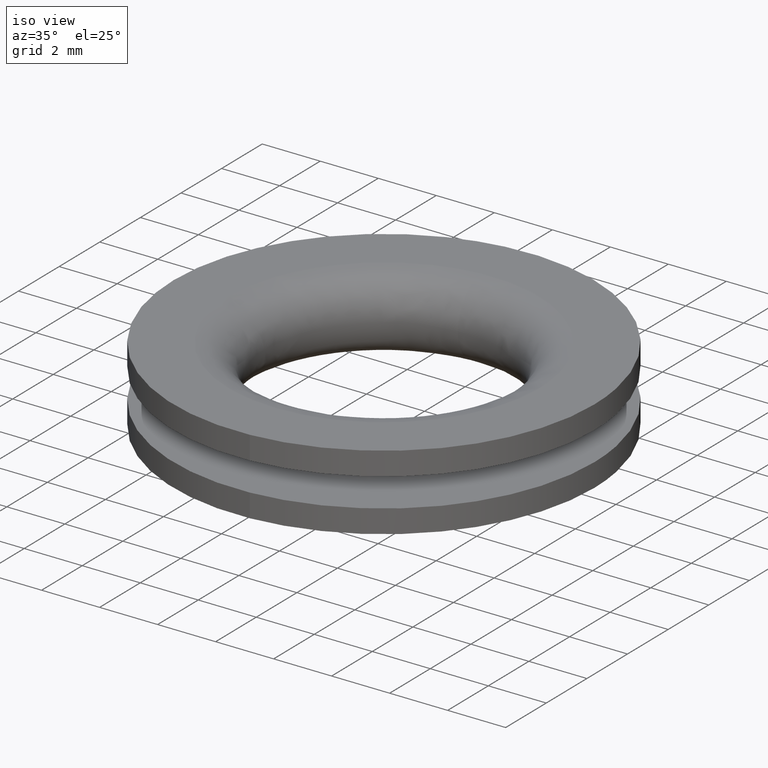
[diagram: clean part render]
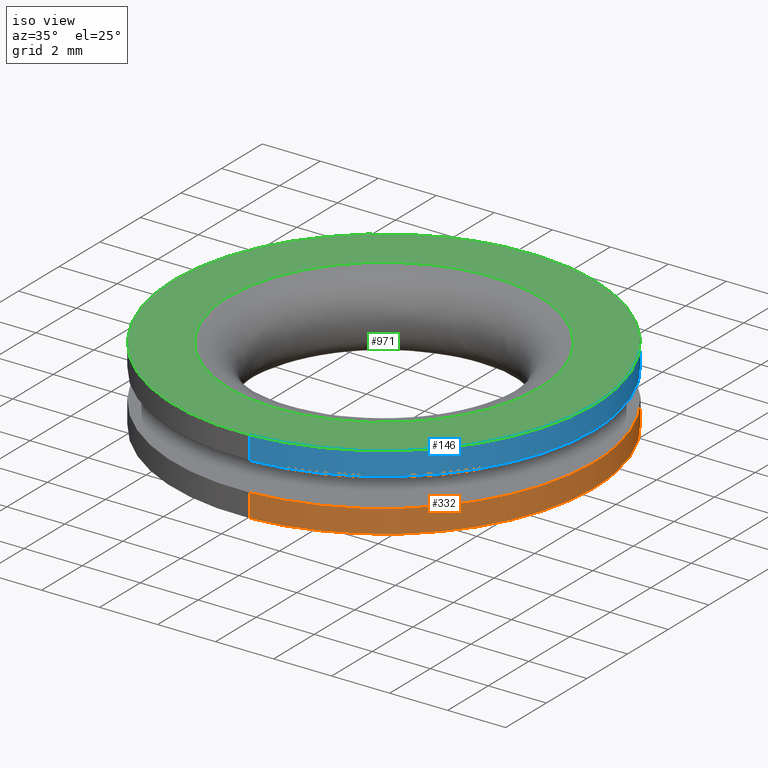
[diagram: same view with three faces highlighted in distinct colors, each labeled with its STEP entity id]
A machine part, iso view with three faces highlighted in distinct colors.
Their STEP definitions:

[orange] entity #332 — the highlighted face is a freeform B-spline surface patch.
#230=CARTESIAN_POINT('',(-0.855748083227264,7.199318073127055,0.819999999999990));
#231=CARTESIAN_POINT('',(-0.649706693010609,7.223809215614775,0.819999999999990));
#232=CARTESIAN_POINT('',(-0.442601850579174,7.236476290423735,0.819999999999990));
#233=CARTESIAN_POINT('',(6.793874439844561,7.679078141002909,0.819999999999990));
#234=CARTESIAN_POINT('',(7.236476290423735,0.442601850579174,0.819999999999990));
#235=CARTESIAN_POINT('',(7.679078141002909,-6.793874439844561,0.819999999999990));
#236=CARTESIAN_POINT('',(0.442601850579174,-7.236476290423735,0.819999999999990));
#237=CARTESIAN_POINT('',(-0.855748083227264,7.199318073127055,-0.020500000000000));
#238=CARTESIAN_POINT('',(-0.649706693010609,7.223809215614775,-0.020500000000000));
#239=CARTESIAN_POINT('',(-0.442601850579174,7.236476290423735,-0.020500000000000));
#240=CARTESIAN_POINT('',(6.793874439844561,7.679078141002909,-0.020500000000000));
#241=CARTESIAN_POINT('',(7.236476290423735,0.442601850579174,-0.020500000000000));
#242=CARTESIAN_POINT('',(7.679078141002909,-6.793874439844561,-0.020500000000000));
#243=CARTESIAN_POINT('',(0.442601850579174,-7.236476290423735,-0.020500000000000));
#251=(BOUNDED_SURFACE()B_SPLINE_SURFACE(2,1,((#230,#237),(#231,#238),(#232,#239),(#233,#240),(#234,#241),(#235,#242),(#236,#243)),.UNSPECIFIED.,.F.,.F.,.U.)B_SPLINE_SURFACE_WITH_KNOTS((3,2,2,3),(2,2),(0.0,0.480487666078621,12.492679318044130,24.504870970009630),(0.0,1.0),.UNSPECIFIED.)GEOMETRIC_REPRESENTATION_ITEM()RATIONAL_B_SPLINE_SURFACE(((0.977505800795127,0.977505800795127),(0.988284271247462,0.988284271247462),(1.0,1.0),(0.707106781186548,0.707106781186548),(1.0,1.0),(0.707106781186548,0.707106781186548),(1.0,1.0)))REPRESENTATION_ITEM('')SURFACE());
#252=CARTESIAN_POINT('',(-0.855743500075938,7.199318617901104,0.799999999999926));
#253=VERTEX_POINT('',#252);
#254=CARTESIAN_POINT('',(7.249999000000000,0.0,0.799999999999990));
#255=VERTEX_POINT('',#254);
#256=CARTESIAN_POINT('',(-0.855743500075938,7.199318617901104,0.799999999999926));
#257=CARTESIAN_POINT('',(-0.429372492450539,7.249999000000001,0.799999999999990));
#258=CARTESIAN_POINT('',(0.0,7.249999000000000,0.799999999999990));
#259=CARTESIAN_POINT('',(7.249998999999999,7.249998999999999,0.799999999999990));
#260=CARTESIAN_POINT('',(7.249999000000000,0.0,0.799999999999990));
#268=(BOUNDED_CURVE()B_SPLINE_CURVE(2,(#256,#257,#258,#259,#260),.UNSPECIFIED.,.F.,.U.)B_SPLINE_CURVE_WITH_KNOTS((3,2,3),(0.229562581104653,0.250000000000000,0.500000000000000),.UNSPECIFIED.)CURVE()GEOMETRIC_REPRESENTATION_ITEM()RATIONAL_B_SPLINE_CURVE((0.956026965066855,0.976056074382012,1.0,0.707106781186547,1.0))REPRESENTATION_ITEM(''));
#269=EDGE_CURVE('',#253,#255,#268,.T.);
#270=ORIENTED_EDGE('',*,*,#269,.T.);
#271=CARTESIAN_POINT('',(0.442599261778933,-7.236476448760612,0.799999999999948));
#272=VERTEX_POINT('',#271);
#273=CARTESIAN_POINT('',(7.249999000000000,0.0,0.799999999999990));
#274=CARTESIAN_POINT('',(7.249998999999998,-6.820120488770804,0.799999999999990));
#275=CARTESIAN_POINT('',(0.442599261778933,-7.236476448760612,0.799999999999948));
#283=(BOUNDED_CURVE()B_SPLINE_CURVE(2,(#273,#274,#275),.UNSPECIFIED.,.F.,.U.)B_SPLINE_CURVE_WITH_KNOTS((3,3),(0.500000000000000,0.739333023969413),.UNSPECIFIED.)CURVE()GEOMETRIC_REPRESENTATION_ITEM()RATIONAL_B_SPLINE_CURVE((1.0,0.719603920964966,0.976072173966902))REPRESENTATION_ITEM(''));
#284=EDGE_CURVE('',#255,#272,#283,.T.);
#285=ORIENTED_EDGE('',*,*,#284,.T.);
#286=CARTESIAN_POINT('',(0.442599292946064,-7.236476446854370,6.938894E-018));
#287=VERTEX_POINT('',#286);
#288=CARTESIAN_POINT('',(0.442599261778933,-7.236476448760612,0.799999999999948));
#289=CARTESIAN_POINT('',(0.442599292946064,-7.236476446854370,6.938894E-018));
#290=QUASI_UNIFORM_CURVE('',1,(#288,#289),.UNSPECIFIED.,.F.,.U.);
#291=EDGE_CURVE('',#272,#287,#290,.T.);
#292=ORIENTED_EDGE('',*,*,#291,.T.);
#293=CARTESIAN_POINT('',(7.249999000000000,0.0,0.0));
#294=VERTEX_POINT('',#293);
#295=CARTESIAN_POINT('',(7.249999000000000,0.0,0.0));
#296=CARTESIAN_POINT('',(7.249998999999999,-6.820120459342002,0.0));
#297=CARTESIAN_POINT('',(0.442599292946064,-7.236476446854370,6.938894E-018));
#305=(BOUNDED_CURVE()B_SPLINE_CURVE(2,(#295,#296,#297),.UNSPECIFIED.,.F.,.U.)B_SPLINE_CURVE_WITH_KNOTS((3,3),(0.500000000000000,0.739333023226263),.UNSPECIFIED.)CURVE()GEOMETRIC_REPRESENTATION_ITEM()RATIONAL_B_SPLINE_CURVE((1.0,0.719603921835620,0.976072172374189))REPRESENTATION_ITEM(''));
#306=EDGE_CURVE('',#294,#287,#305,.T.);
#307=ORIENTED_EDGE('',*,*,#306,.F.);
#308=CARTESIAN_POINT('',(-0.855743555278183,7.199318611339550,-4.081678E-017));
#309=VERTEX_POINT('',#308);
#310=CARTESIAN_POINT('',(-0.855743555278183,7.199318611339550,-4.081678E-017));
#311=CARTESIAN_POINT('',(-0.429372520343452,7.249999000000001,0.0));
#312=CARTESIAN_POINT('',(0.0,7.249999000000000,0.0));
#313=CARTESIAN_POINT('',(7.249998999999999,7.249998999999999,0.0));
#314=CARTESIAN_POINT('',(7.249999000000000,0.0,0.0));
#322=(BOUNDED_CURVE()B_SPLINE_CURVE(2,(#310,#311,#312,#313,#314),.UNSPECIFIED.,.F.,.U.)B_SPLINE_CURVE_WITH_KNOTS((3,2,3),(0.229562579808786,0.250000000000000,0.500000000000000),.UNSPECIFIED.)CURVE()GEOMETRIC_REPRESENTATION_ITEM()RATIONAL_B_SPLINE_CURVE((0.956026962526900,0.976056072863809,1.0,0.707106781186547,1.0))REPRESENTATION_ITEM(''));
#323=EDGE_CURVE('',#309,#294,#322,.T.);
#324=ORIENTED_EDGE('',*,*,#323,.F.);
#325=CARTESIAN_POINT('',(-0.855743500075938,7.199318617901104,0.799999999999926));
#326=CARTESIAN_POINT('',(-0.855743555278183,7.199318611339550,-4.081678E-017));
#327=QUASI_UNIFORM_CURVE('',1,(#325,#326),.UNSPECIFIED.,.F.,.U.);
#328=EDGE_CURVE('',#253,#309,#327,.T.);
#329=ORIENTED_EDGE('',*,*,#328,.F.);
#330=EDGE_LOOP('',(#270,#285,#292,#307,#324,#329));
#331=FACE_OUTER_BOUND('',#330,.T.);
#332=ADVANCED_FACE('',(#331),#251,.T.);

[blue] entity #146 — the highlighted face is a freeform B-spline surface patch.
#44=CARTESIAN_POINT('',(-0.855748083227264,7.199318073127055,2.619998975000001));
#45=CARTESIAN_POINT('',(-0.649706693010609,7.223809215614775,2.619998975000001));
#46=CARTESIAN_POINT('',(-0.442601850579174,7.236476290423735,2.619998975000001));
#47=CARTESIAN_POINT('',(6.793874439844561,7.679078141002909,2.619998975000000));
#48=CARTESIAN_POINT('',(7.236476290423735,0.442601850579174,2.619998975000001));
#49=CARTESIAN_POINT('',(7.679078141002909,-6.793874439844561,2.619998975000000));
#50=CARTESIAN_POINT('',(0.442601850579174,-7.236476290423735,2.619998975000001));
#51=CARTESIAN_POINT('',(-0.855748083227264,7.199318073127055,1.779500025625000));
#52=CARTESIAN_POINT('',(-0.649706693010609,7.223809215614775,1.779500025625000));
#53=CARTESIAN_POINT('',(-0.442601850579174,7.236476290423735,1.779500025625000));
#54=CARTESIAN_POINT('',(6.793874439844561,7.679078141002909,1.779500025625001));
#55=CARTESIAN_POINT('',(7.236476290423735,0.442601850579174,1.779500025625000));
#56=CARTESIAN_POINT('',(7.679078141002909,-6.793874439844561,1.779500025625001));
#57=CARTESIAN_POINT('',(0.442601850579174,-7.236476290423735,1.779500025625000));
#65=(BOUNDED_SURFACE()B_SPLINE_SURFACE(2,1,((#44,#51),(#45,#52),(#46,#53),(#47,#54),(#48,#55),(#49,#56),(#50,#57)),.UNSPECIFIED.,.F.,.F.,.U.)B_SPLINE_SURFACE_WITH_KNOTS((3,2,2,3),(2,2),(0.0,0.480487666078621,12.492679318044130,24.504870970009630),(0.0,1.0),.UNSPECIFIED.)GEOMETRIC_REPRESENTATION_ITEM()RATIONAL_B_SPLINE_SURFACE(((0.977505800795127,0.977505800795127),(0.988284271247462,0.988284271247462),(1.0,1.0),(0.707106781186548,0.707106781186548),(1.0,1.0),(0.707106781186548,0.707106781186548),(1.0,1.0)))REPRESENTATION_ITEM('')SURFACE());
#66=CARTESIAN_POINT('',(-0.855743498730361,7.199318618061044,1.800000000000064));
#67=VERTEX_POINT('',#66);
#68=CARTESIAN_POINT('',(7.249999000000000,0.0,1.800000000000000));
#69=VERTEX_POINT('',#68);
#70=CARTESIAN_POINT('',(-0.855743498730361,7.199318618061044,1.800000000000064));
#71=CARTESIAN_POINT('',(-0.429372491770638,7.249998999999999,1.800000000000000));
#72=CARTESIAN_POINT('',(0.0,7.249999000000000,1.800000000000000));
#73=CARTESIAN_POINT('',(7.249998999999999,7.249998999999999,1.800000000000001));
#74=CARTESIAN_POINT('',(7.249999000000000,0.0,1.800000000000000));
#82=(BOUNDED_CURVE()B_SPLINE_CURVE(2,(#70,#71,#72,#73,#74),.UNSPECIFIED.,.F.,.U.)B_SPLINE_CURVE_WITH_KNOTS((3,2,3),(0.229562581136241,0.250000000000000,0.500000000000000),.UNSPECIFIED.)CURVE()GEOMETRIC_REPRESENTATION_ITEM()RATIONAL_B_SPLINE_CURVE((0.956026965128767,0.976056074419019,1.0,0.707106781186547,1.0))REPRESENTATION_ITEM(''));
#83=EDGE_CURVE('',#67,#69,#82,.T.);
#84=ORIENTED_EDGE('',*,*,#83,.F.);
#85=CARTESIAN_POINT('',(-0.855743555278183,7.199318611339550,2.599999000000000));
#86=VERTEX_POINT('',#85);
#87=CARTESIAN_POINT('',(-0.855743555278183,7.199318611339550,2.599999000000000));
#88=CARTESIAN_POINT('',(-0.855743498730361,7.199318618061044,1.800000000000064));
#89=QUASI_UNIFORM_CURVE('',1,(#87,#88),.UNSPECIFIED.,.F.,.U.);
#90=EDGE_CURVE('',#86,#67,#89,.T.);
#91=ORIENTED_EDGE('',*,*,#90,.F.);
#92=CARTESIAN_POINT('',(7.249999000000000,0.0,2.599999000000000));
#93=VERTEX_POINT('',#92);
#94=CARTESIAN_POINT('',(-0.855743555278183,7.199318611339550,2.599999000000000));
#95=CARTESIAN_POINT('',(-0.429372520343452,7.249999000000001,2.599999000000001));
#96=CARTESIAN_POINT('',(0.0,7.249999000000000,2.599999000000000));
#97=CARTESIAN_POINT('',(7.249998999999999,7.249998999999999,2.599999000000000));
#98=CARTESIAN_POINT('',(7.249999000000000,0.0,2.599999000000000));
#106=(BOUNDED_CURVE()B_SPLINE_CURVE(2,(#94,#95,#96,#97,#98),.UNSPECIFIED.,.F.,.U.)B_SPLINE_CURVE_WITH_KNOTS((3,2,3),(0.229562579808786,0.250000000000000,0.500000000000000),.UNSPECIFIED.)CURVE()GEOMETRIC_REPRESENTATION_ITEM()RATIONAL_B_SPLINE_CURVE((0.956026962526900,0.976056072863809,1.0,0.707106781186547,1.0))REPRESENTATION_ITEM(''));
#107=EDGE_CURVE('',#86,#93,#106,.T.);
#108=ORIENTED_EDGE('',*,*,#107,.T.);
#109=CARTESIAN_POINT('',(0.442599292946064,-7.236476446854370,2.599999000000000));
#110=VERTEX_POINT('',#109);
#111=CARTESIAN_POINT('',(7.249999000000000,0.0,2.599999000000000));
#112=CARTESIAN_POINT('',(7.249998999999999,-6.820120459342002,2.599999000000001));
#113=CARTESIAN_POINT('',(0.442599292946064,-7.236476446854370,2.599998999999999));
#121=(BOUNDED_CURVE()B_SPLINE_CURVE(2,(#111,#112,#113),.UNSPECIFIED.,.F.,.U.)B_SPLINE_CURVE_WITH_KNOTS((3,3),(0.500000000000000,0.739333023226263),.UNSPECIFIED.)CURVE()GEOMETRIC_REPRESENTATION_ITEM()RATIONAL_B_SPLINE_CURVE((1.0,0.719603921835620,0.976072172374189))REPRESENTATION_ITEM(''));
#122=EDGE_CURVE('',#93,#110,#121,.T.);
#123=ORIENTED_EDGE('',*,*,#122,.T.);
#124=CARTESIAN_POINT('',(0.442599261019222,-7.236476448807077,1.800000000000042));
#125=VERTEX_POINT('',#124);
#126=CARTESIAN_POINT('',(0.442599292946064,-7.236476446854370,2.599999000000000));
#127=CARTESIAN_POINT('',(0.442599261019222,-7.236476448807077,1.800000000000042));
#128=QUASI_UNIFORM_CURVE('',1,(#126,#127),.UNSPECIFIED.,.F.,.U.);
#129=EDGE_CURVE('',#110,#125,#128,.T.);
#130=ORIENTED_EDGE('',*,*,#129,.T.);
#131=CARTESIAN_POINT('',(7.249999000000000,0.0,1.800000000000000));
#132=CARTESIAN_POINT('',(7.249998999999999,-6.820120489488138,1.799999999999999));
#133=CARTESIAN_POINT('',(0.442599261019222,-7.236476448807077,1.800000000000042));
#141=(BOUNDED_CURVE()B_SPLINE_CURVE(2,(#131,#132,#133),.UNSPECIFIED.,.F.,.U.)B_SPLINE_CURVE_WITH_KNOTS((3,3),(0.500000000000000,0.739333023987528),.UNSPECIFIED.)CURVE()GEOMETRIC_REPRESENTATION_ITEM()RATIONAL_B_SPLINE_CURVE((1.0,0.719603920943743,0.976072174005725))REPRESENTATION_ITEM(''));
#142=EDGE_CURVE('',#69,#125,#141,.T.);
#143=ORIENTED_EDGE('',*,*,#142,.F.);
#144=EDGE_LOOP('',(#84,#91,#108,#123,#130,#143));
#145=FACE_OUTER_BOUND('',#144,.T.);
#146=ADVANCED_FACE('',(#145),#65,.T.);

[green] entity #971 — the highlighted face is a freeform B-spline surface patch.
#85=CARTESIAN_POINT('',(-0.855743555278183,7.199318611339550,2.599999000000000));
#86=VERTEX_POINT('',#85);
#92=CARTESIAN_POINT('',(7.249999000000000,0.0,2.599999000000000));
#93=VERTEX_POINT('',#92);
#94=CARTESIAN_POINT('',(-0.855743555278183,7.199318611339550,2.599999000000000));
#95=CARTESIAN_POINT('',(-0.429372520343452,7.249999000000001,2.599999000000001));
#96=CARTESIAN_POINT('',(0.0,7.249999000000000,2.599999000000000));
#97=CARTESIAN_POINT('',(7.249998999999999,7.249998999999999,2.599999000000000));
#98=CARTESIAN_POINT('',(7.249999000000000,0.0,2.599999000000000));
#106=(BOUNDED_CURVE()B_SPLINE_CURVE(2,(#94,#95,#96,#97,#98),.UNSPECIFIED.,.F.,.U.)B_SPLINE_CURVE_WITH_KNOTS((3,2,3),(0.229562579808786,0.250000000000000,0.500000000000000),.UNSPECIFIED.)CURVE()GEOMETRIC_REPRESENTATION_ITEM()RATIONAL_B_SPLINE_CURVE((0.956026962526900,0.976056072863809,1.0,0.707106781186547,1.0))REPRESENTATION_ITEM(''));
#107=EDGE_CURVE('',#86,#93,#106,.T.);
#109=CARTESIAN_POINT('',(0.442599292946064,-7.236476446854370,2.599999000000000));
#110=VERTEX_POINT('',#109);
#111=CARTESIAN_POINT('',(7.249999000000000,0.0,2.599999000000000));
#112=CARTESIAN_POINT('',(7.249998999999999,-6.820120459342002,2.599999000000001));
#113=CARTESIAN_POINT('',(0.442599292946064,-7.236476446854370,2.599998999999999));
#121=(BOUNDED_CURVE()B_SPLINE_CURVE(2,(#111,#112,#113),.UNSPECIFIED.,.F.,.U.)B_SPLINE_CURVE_WITH_KNOTS((3,3),(0.500000000000000,0.739333023226263),.UNSPECIFIED.)CURVE()GEOMETRIC_REPRESENTATION_ITEM()RATIONAL_B_SPLINE_CURVE((1.0,0.719603921835620,0.976072172374189))REPRESENTATION_ITEM(''));
#122=EDGE_CURVE('',#93,#110,#121,.T.);
#196=CARTESIAN_POINT('',(-7.249999000000000,0.0,2.599999000000000));
#197=VERTEX_POINT('',#196);
#198=CARTESIAN_POINT('',(0.442599292946064,-7.236476446854370,2.599998999999999));
#199=CARTESIAN_POINT('',(0.221506220959810,-7.249999000000000,2.599999000000000));
#200=CARTESIAN_POINT('',(0.0,-7.249999000000000,2.599999000000000));
#201=CARTESIAN_POINT('',(-7.249998999999999,-7.249998999999999,2.599999000000000));
#202=CARTESIAN_POINT('',(-7.249999000000000,0.0,2.599999000000000));
#210=(BOUNDED_CURVE()B_SPLINE_CURVE(2,(#198,#199,#200,#201,#202),.UNSPECIFIED.,.F.,.U.)B_SPLINE_CURVE_WITH_KNOTS((3,2,3),(0.739333023226263,0.750000000000000,1.0),.UNSPECIFIED.)CURVE()GEOMETRIC_REPRESENTATION_ITEM()RATIONAL_B_SPLINE_CURVE((0.976072172374189,0.987502859350927,1.0,0.707106781186547,1.0))REPRESENTATION_ITEM(''));
#211=EDGE_CURVE('',#110,#197,#210,.T.);
#213=CARTESIAN_POINT('',(-7.249999000000000,0.0,2.599999000000000));
#214=CARTESIAN_POINT('',(-7.249998999999999,6.439268503403767,2.599999000000000));
#215=CARTESIAN_POINT('',(-0.855743555278183,7.199318611339550,2.599999000000000));
#223=(BOUNDED_CURVE()B_SPLINE_CURVE(2,(#213,#214,#215),.UNSPECIFIED.,.F.,.U.)B_SPLINE_CURVE_WITH_KNOTS((3,3),(0.0,0.229562579808786),.UNSPECIFIED.)CURVE()GEOMETRIC_REPRESENTATION_ITEM()RATIONAL_B_SPLINE_CURVE((1.0,0.731050708322738,0.956026962526900))REPRESENTATION_ITEM(''));
#224=EDGE_CURVE('',#197,#86,#223,.T.);
#735=CARTESIAN_POINT('',(0.067248550375671,-5.351187910571347,2.599999000000008));
#736=VERTEX_POINT('',#735);
#752=CARTESIAN_POINT('',(5.351610451245589,0.0,2.599999000000000));
#753=VERTEX_POINT('',#752);
#754=CARTESIAN_POINT('',(5.351610451245589,0.0,2.599999000000000));
#755=CARTESIAN_POINT('',(5.351610451245590,-5.284779164811236,2.599999000000000));
#756=CARTESIAN_POINT('',(0.067248550375671,-5.351187910571347,2.599999000000008));
#764=(BOUNDED_CURVE()B_SPLINE_CURVE(2,(#754,#755,#756),.UNSPECIFIED.,.F.,.U.)B_SPLINE_CURVE_WITH_KNOTS((3,3),(0.500000000000000,0.747784295921381),.UNSPECIFIED.)CURVE()GEOMETRIC_REPRESENTATION_ITEM()RATIONAL_B_SPLINE_CURVE((1.0,0.709702639984647,0.994854295643212))REPRESENTATION_ITEM(''));
#765=EDGE_CURVE('',#753,#736,#764,.T.);
#767=CARTESIAN_POINT('',(-0.373184664486969,5.338584167763401,2.599998998458898));
#768=VERTEX_POINT('',#767);
#769=CARTESIAN_POINT('',(-0.373184664486969,5.338584167763401,2.599998998458898));
#770=CARTESIAN_POINT('',(-0.186819763380104,5.351611669580366,2.599998998483982));
#771=CARTESIAN_POINT('',(-0.000000083654502,5.351611647963042,2.599998998510882));
#772=CARTESIAN_POINT('',(5.351610410878489,5.351611028716175,2.599998999281432));
#773=CARTESIAN_POINT('',(5.351610451245589,0.0,2.599999000000000));
#781=(BOUNDED_CURVE()B_SPLINE_CURVE(2,(#769,#770,#771,#772,#773),.UNSPECIFIED.,.F.,.U.)B_SPLINE_CURVE_WITH_KNOTS((3,2,3),(0.237833706509029,0.250000000000000,0.500000000000000),.UNSPECIFIED.)CURVE()GEOMETRIC_REPRESENTATION_ITEM()RATIONAL_B_SPLINE_CURVE((0.972879918633580,0.985746300553602,1.0,0.707106781186547,1.0))REPRESENTATION_ITEM(''));
#782=EDGE_CURVE('',#768,#753,#781,.T.);
#851=CARTESIAN_POINT('',(-5.351610451245589,0.0,2.599999000000000));
#852=VERTEX_POINT('',#851);
#853=CARTESIAN_POINT('',(-5.351610451245589,0.0,2.599999000000000));
#854=CARTESIAN_POINT('',(-5.351610494532991,4.990575138265784,2.599998999229450));
#855=CARTESIAN_POINT('',(-0.373184664486969,5.338584167763401,2.599998998458898));
#863=(BOUNDED_CURVE()B_SPLINE_CURVE(2,(#853,#854,#855),.UNSPECIFIED.,.F.,.U.)B_SPLINE_CURVE_WITH_KNOTS((3,3),(0.0,0.237833706509029),.UNSPECIFIED.)CURVE()GEOMETRIC_REPRESENTATION_ITEM()RATIONAL_B_SPLINE_CURVE((1.0,0.721360480632945,0.972879918633580))REPRESENTATION_ITEM(''));
#864=EDGE_CURVE('',#852,#768,#863,.T.);
#866=CARTESIAN_POINT('',(0.067248550375671,-5.351187910571347,2.599999000000008));
#867=CARTESIAN_POINT('',(0.033625602658654,-5.351610451245590,2.599999000000001));
#868=CARTESIAN_POINT('',(0.0,-5.351610451245589,2.599999000000000));
#869=CARTESIAN_POINT('',(-5.351610451245590,-5.351610451245590,2.599999000000000));
#870=CARTESIAN_POINT('',(-5.351610451245589,0.0,2.599999000000000));
#878=(BOUNDED_CURVE()B_SPLINE_CURVE(2,(#866,#867,#868,#869,#870),.UNSPECIFIED.,.F.,.U.)B_SPLINE_CURVE_WITH_KNOTS((3,2,3),(0.747784295921381,0.750000000000000,1.0),.UNSPECIFIED.)CURVE()GEOMETRIC_REPRESENTATION_ITEM()RATIONAL_B_SPLINE_CURVE((0.994854295643214,0.997404141201901,1.0,0.707106781186547,1.0))REPRESENTATION_ITEM(''));
#879=EDGE_CURVE('',#736,#852,#878,.T.);
#954=CARTESIAN_POINT('',(-7.974274008111798,-7.974097821811516,2.599999000000000));
#955=CARTESIAN_POINT('',(7.974274267391968,-7.974097821811516,2.599999000000000));
#956=CARTESIAN_POINT('',(-7.974274008111798,7.974142029080333,2.599999000000000));
#957=CARTESIAN_POINT('',(7.974274267391968,7.974142029080333,2.599999000000000));
#958=B_SPLINE_SURFACE_WITH_KNOTS('',1,1,((#954,#956),(#955,#957)),.UNSPECIFIED.,.F.,.F.,.U.,(2,2),(2,2),(0.0,15.948548275503761),(0.0,15.948239850891850),.UNSPECIFIED.);
#959=ORIENTED_EDGE('',*,*,#211,.F.);
#960=ORIENTED_EDGE('',*,*,#122,.F.);
#961=ORIENTED_EDGE('',*,*,#107,.F.);
#962=ORIENTED_EDGE('',*,*,#224,.F.);
#963=EDGE_LOOP('',(#959,#960,#961,#962));
#964=FACE_OUTER_BOUND('',#963,.T.);
#965=ORIENTED_EDGE('',*,*,#765,.T.);
#966=ORIENTED_EDGE('',*,*,#879,.T.);
#967=ORIENTED_EDGE('',*,*,#864,.T.);
#968=ORIENTED_EDGE('',*,*,#782,.T.);
#969=EDGE_LOOP('',(#965,#966,#967,#968));
#970=FACE_BOUND('',#969,.T.);
#971=ADVANCED_FACE('',(#964,#970),#958,.T.);